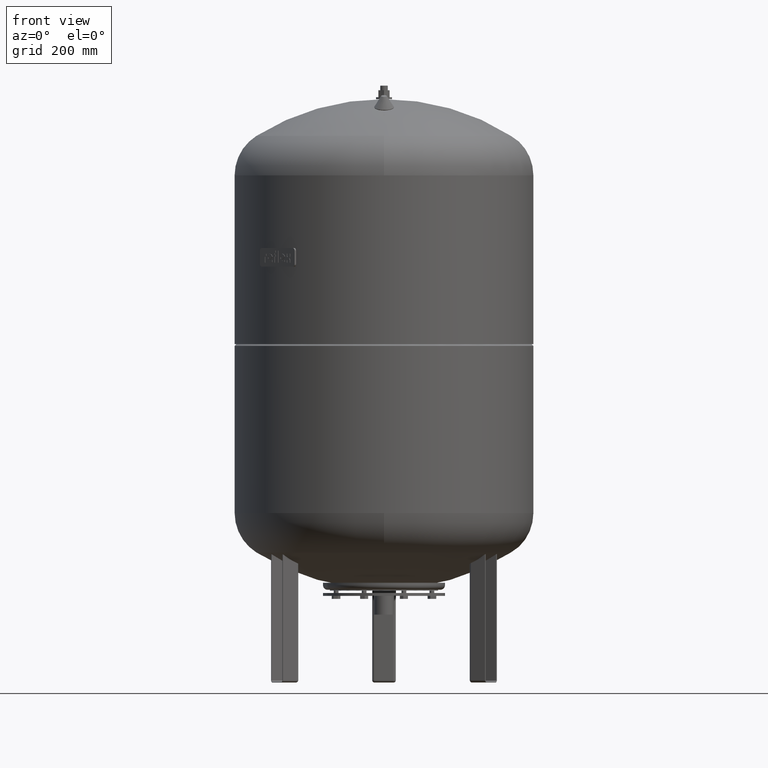
[diagram: clean part render]
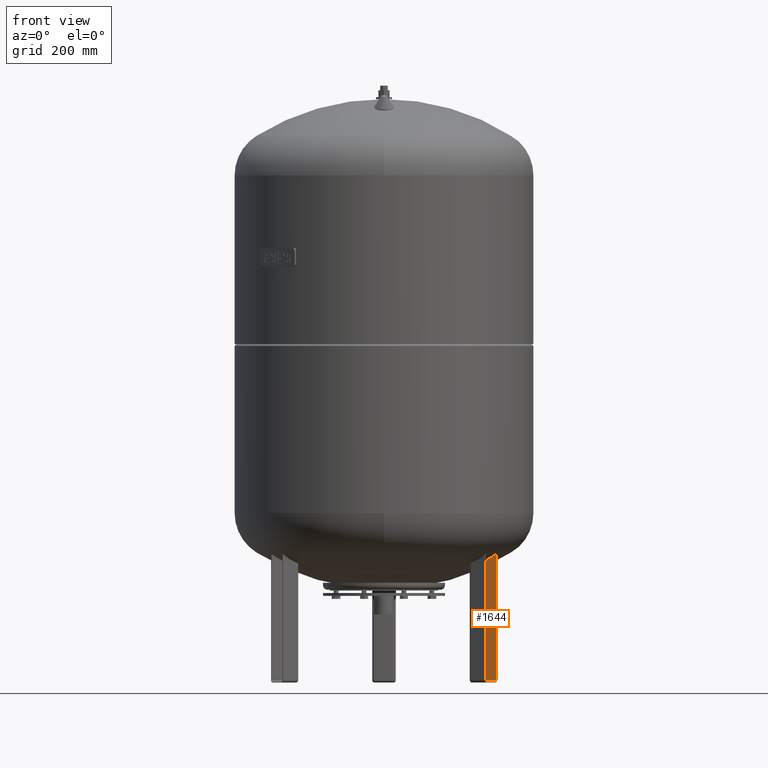
[diagram: same view with one face highlighted and labeled with its STEP entity id]
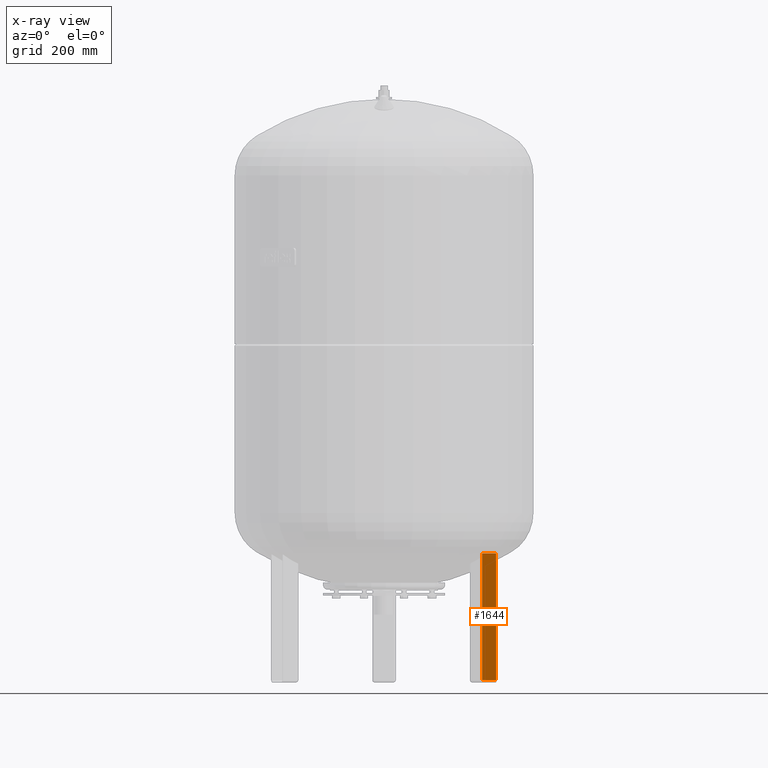
[diagram: x-ray of the same camera — body ghosted, the highlighted face saturated]
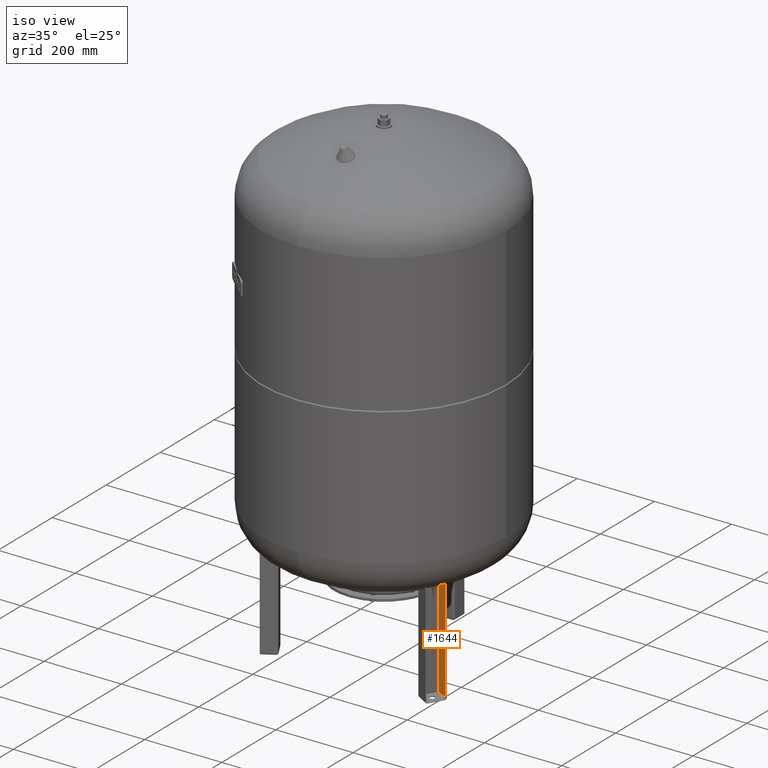
[diagram: same view with one face highlighted and labeled with its STEP entity id]
A machine part, front view. The second image highlights one B-rep face of the part: STEP entity #1644.
The next image is the same camera in x-ray: the body ghosted, the highlighted face saturated — about 0% of this face is hidden behind the body in this view.
A second angle (iso view) of the same face is appended — the face is thin or edge-on in the first view.
In plain terms, the highlighted planar face has unit normal (0.5, 0.866, 0).
Its self-contained STEP definition (entity closure, byte-faithful):
#1262=CARTESIAN_POINT('',(208.270779360959780,-94.264428414850187,274.0));
#1263=VERTEX_POINT('',#1262);
#1271=CARTESIAN_POINT('',(237.715643089630700,-111.264428414850200,274.0));
#1272=VERTEX_POINT('',#1271);
#1273=CARTESIAN_POINT('',(237.715643089630700,-111.264428414850200,274.0));
#1274=DIRECTION('',(-0.866025403784439,0.500000000000000,0.0));
#1275=VECTOR('',#1274,34.000000000000014);
#1276=LINE('',#1273,#1275);
#1277=EDGE_CURVE('',#1272,#1263,#1276,.T.);
#1362=CARTESIAN_POINT('',(237.715643089630700,-111.264428414850200,4.500000000000004));
#1363=VERTEX_POINT('',#1362);
#1364=CARTESIAN_POINT('',(237.715643089630700,-111.264428414850200,274.0));
#1365=DIRECTION('',(0.0,0.0,-1.0));
#1366=VECTOR('',#1365,269.500000000000000);
#1367=LINE('',#1364,#1366);
#1368=EDGE_CURVE('',#1272,#1363,#1367,.T.);
#1609=CARTESIAN_POINT('',(208.270779360959780,-94.264428414850187,4.500000000000004));
#1610=VERTEX_POINT('',#1609);
#1611=CARTESIAN_POINT('',(237.715643089630700,-111.264428414850200,4.500000000000004));
#1612=DIRECTION('',(-0.866025403784439,0.500000000000000,0.0));
#1613=VECTOR('',#1612,34.000000000000014);
#1614=LINE('',#1611,#1613);
#1615=EDGE_CURVE('',#1363,#1610,#1614,.T.);
#1628=CARTESIAN_POINT('',(206.105715851498700,-93.014428414850187,2.000000000000004));
#1629=DIRECTION('',(0.500000000000000,0.866025403784438,1.836970E-016));
#1630=DIRECTION('',(-0.866025403784438,0.500000000000000,0.0));
#1631=AXIS2_PLACEMENT_3D('',#1628,#1629,#1630);
#1632=PLANE('',#1631);
#1633=ORIENTED_EDGE('',*,*,#1368,.F.);
#1634=ORIENTED_EDGE('',*,*,#1277,.T.);
#1635=CARTESIAN_POINT('',(208.270779360959780,-94.264428414850187,4.500000000000004));
#1636=DIRECTION('',(0.0,0.0,1.0));
#1637=VECTOR('',#1636,269.500000000000000);
#1638=LINE('',#1635,#1637);
#1639=EDGE_CURVE('',#1610,#1263,#1638,.T.);
#1640=ORIENTED_EDGE('',*,*,#1639,.F.);
#1641=ORIENTED_EDGE('',*,*,#1615,.F.);
#1642=EDGE_LOOP('',(#1633,#1634,#1640,#1641));
#1643=FACE_OUTER_BOUND('',#1642,.T.);
#1644=ADVANCED_FACE('',(#1643),#1632,.F.);